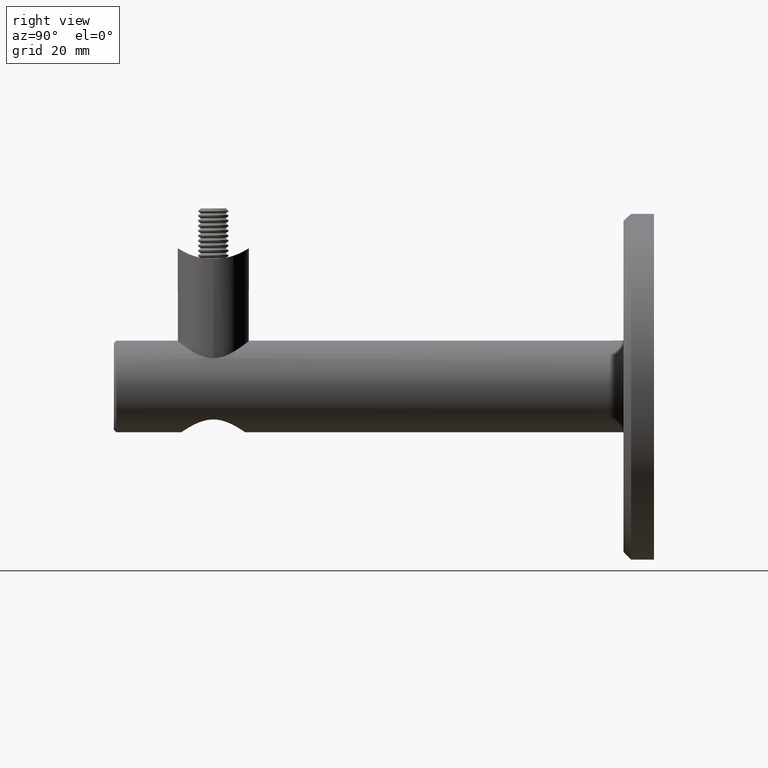
[diagram: clean part render]
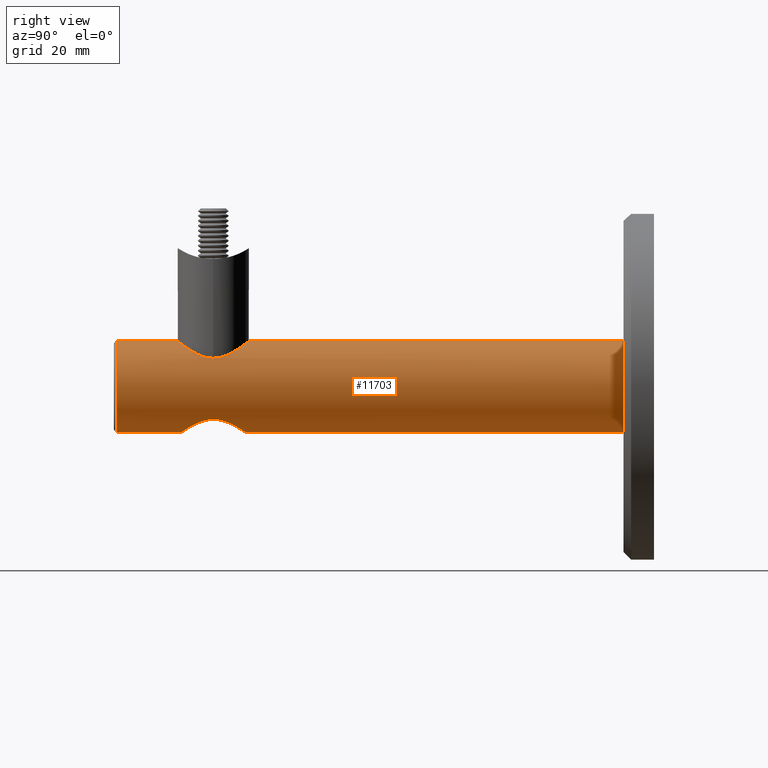
[diagram: same view with one face highlighted and labeled with its STEP entity id]
A machine part, right view. The second image highlights one B-rep face of the part: STEP entity #11703.
In plain terms, the highlighted cylindrical surface (bore or boss wall) has radius 9 mm, axis along (-0, -1, -0).
Its self-contained STEP definition (entity closure, byte-faithful):
#31 = CARTESIAN_POINT ( 'NONE',  ( 4.710791686269408800, -26.37371973439599800, -7.675304407319747400 ) ) ;
#166 = CARTESIAN_POINT ( 'NONE',  ( 0.0000000000000000000, -49.49999999999999300, 0.0000000000000000000 ) ) ;
#230 = CARTESIAN_POINT ( 'NONE',  ( 4.970846357274778500, -34.30892757832237500, -7.507506707202775700 ) ) ;
#286 = CARTESIAN_POINT ( 'NONE',  ( -2.061286546811104300, -36.41479551234504400, -8.769703303344153200 ) ) ;
#289 = CARTESIAN_POINT ( 'NONE',  ( 2.619542184995936800, -23.89670945021535400, 8.613346532681605400 ) ) ;
#345 = CARTESIAN_POINT ( 'NONE',  ( -5.596902373827534300, -27.68938242109472700, -7.050995136853140700 ) ) ;
#347 = CARTESIAN_POINT ( 'NONE',  ( -5.642332087172477800, -26.16755877182649900, 7.019329449387522700 ) ) ;
#404 = CARTESIAN_POINT ( 'NONE',  ( -4.155172318841324300, -25.81462797999166300, -7.989785200455963300 ) ) ;
#407 = CARTESIAN_POINT ( 'NONE',  ( -3.024464550961373500, -24.07207068461833500, 8.479659982971508500 ) ) ;
#478 = CARTESIAN_POINT ( 'NONE',  ( -5.292625008608878200, -33.83014449353832000, -7.280554259646638800 ) ) ;
#479 = CARTESIAN_POINT ( 'NONE',  ( 0.5027749281979183600, -23.40095533306699900, 8.999246348882701700 ) ) ;
#540 = CARTESIAN_POINT ( 'NONE',  ( -0.8508197996051981600, -24.29398310942404400, -8.969300782765149200 ) ) ;
#542 = CARTESIAN_POINT ( 'NONE',  ( 6.357556442758746800, -27.30689534025241000, 6.375548285552003600 ) ) ;
#608 = CARTESIAN_POINT ( 'NONE',  ( -6.021984603733025100, -34.26749708945724400, 6.690436094339672100 ) ) ;
#677 = CARTESIAN_POINT ( 'NONE',  ( 0.0000000000000000000, 50.00000000000000000, 0.0000000000000000000 ) ) ;
#741 = CARTESIAN_POINT ( 'NONE',  ( 3.638758388492744800, -36.60108031841120600, 8.234538053706854700 ) ) ;
#802 = CARTESIAN_POINT ( 'NONE',  ( 5.365885739123341700, -35.17061067538768500, 7.235292245401721400 ) ) ;
#861 = CARTESIAN_POINT ( 'NONE',  ( -2.633039232334198700, -37.09789016638863800, 8.609206545323306900 ) ) ;
#1064 = EDGE_CURVE ( 'NONE', #4571, #4571, #7368, .T. ) ;
#1347 = VERTEX_POINT ( 'NONE', #8978 ) ;
#1352 = CARTESIAN_POINT ( 'NONE',  ( 7.099999999999998800, -30.50000000000000000, 5.530822723609934300 ) ) ;
#1422 = CARTESIAN_POINT ( 'NONE',  ( 0.8486939787490258600, -24.29371766589811400, -8.969485670367008700 ) ) ;
#1667 = CARTESIAN_POINT ( 'NONE',  ( -5.396836218958042300, -33.65860674950023000, -7.203382794264179300 ) ) ;
#1728 = CARTESIAN_POINT ( 'NONE',  ( -6.025830904942493400, -32.17157201560063800, -6.685513959992365000 ) ) ;
#1733 = CARTESIAN_POINT ( 'NONE',  ( 1.939970811941640600, -23.66599755546607400, 8.791556000784218800 ) ) ;
#1795 = CARTESIAN_POINT ( 'NONE',  ( -6.163780700509029500, -29.44447943426451900, -6.558286688497323000 ) ) ;
#1797 = CARTESIAN_POINT ( 'NONE',  ( -3.834725836337208100, -24.52034322467752500, 8.144845665829075500 ) ) ;
#1824 = EDGE_LOOP ( 'NONE', ( #13022 ) ) ;
#1859 = CARTESIAN_POINT ( 'NONE',  ( 6.039469416618631600, -32.16286533889366700, -6.673683168320340400 ) ) ;
#1861 = CARTESIAN_POINT ( 'NONE',  ( 7.099999999999999600, -30.00273319755235900, 5.530822723609935200 ) ) ;
#1874 = EDGE_CURVE ( 'NONE', #10349, #10349, #3336, .T. ) ;
#1919 = CARTESIAN_POINT ( 'NONE',  ( -6.238972838082677400, -30.07286291933747100, -6.486609913351317800 ) ) ;
#1921 = CARTESIAN_POINT ( 'NONE',  ( -6.698460215747077800, -28.13469507914095000, 6.011819268739251300 ) ) ;
#2117 = CARTESIAN_POINT ( 'NONE',  ( -7.086409559180720100, -29.99799698838017600, 5.548377279018345700 ) ) ;
#2183 = CARTESIAN_POINT ( 'NONE',  ( -5.655039729623048600, -34.81553672247727600, 7.008955732243393300 ) ) ;
#2238 = EDGE_LOOP ( 'NONE', ( #10356 ) ) ;
#2246 = CARTESIAN_POINT ( 'NONE',  ( 6.901556102760979500, -32.18400665644620100, 5.777062135213372000 ) ) ;
#2316 = CARTESIAN_POINT ( 'NONE',  ( 6.700702125161100800, -32.85897151208032300, 6.009317344825627000 ) ) ;
#2888 = CARTESIAN_POINT ( 'NONE',  ( 6.161857813342693100, -29.43352522790626600, -6.560094511543604200 ) ) ;
#3135 = CARTESIAN_POINT ( 'NONE',  ( 2.656853951682345300, -36.16095396528888300, -8.601172577071768200 ) ) ;
#3205 = CARTESIAN_POINT ( 'NONE',  ( 5.916685559009553500, -32.55439536689002700, -6.784915671986841100 ) ) ;
#3258 = CARTESIAN_POINT ( 'NONE',  ( -6.026502375267695800, -28.83075492519453700, -6.684911694872583100 ) ) ;
#3260 = CARTESIAN_POINT ( 'NONE',  ( -6.013169986242904700, -26.71836327618240900, 6.698396154438110100 ) ) ;
#3319 = CARTESIAN_POINT ( 'NONE',  ( -3.347443741442171400, -35.78178920804881400, -8.356257711368673600 ) ) ;
#3324 = CARTESIAN_POINT ( 'NONE',  ( -0.4745413456879579700, -23.41167377363979800, 8.990780701699421200 ) ) ;
#3336 = B_SPLINE_CURVE_WITH_KNOTS ( 'NONE', 3,
 ( #8663, #8924, #1422, #4548, #11893, #6048, #7222, #4365, #18948, #31, #11706, #18884, #14546, #5778, #13220, #16004, #17453, #2888, #10294, #7767, #17714, #7700, #15110, #1859, #3205, #12082, #14918, #9242, #12144, #230, #13538, #7587, #6181, #12211, #4730, #16306, #3135, #13471, #17774, #9049, #3387, #4669, #17897, #16362, #6116, #10489, #16253, #286, #4610, #10559, #10742, #3319, #7640, #10618, #13412, #14980, #478, #1667, #13596, #7522, #17954, #17840, #1728, #13656, #6239, #9181, #11961, #1919, #4866, #1795, #14857, #3258, #12018, #9114, #345, #8988, #4801, #16425, #404, #10680, #15044, #6299, #16489, #10811, #540, #4928, #15174 ),
 .UNSPECIFIED., .T., .F.,
 ( 4, 2, 2, 2, 2, 2, 2, 2, 2, 2, 2, 2, 2, 2, 2, 2, 2, 2, 2, 2, 2, 1, 2, 2, 2, 2, 2, 2, 2, 2, 2, 2, 2, 2, 2, 2, 2, 2, 2, 2, 2, 2, 2, 4 ),
 ( 0.0000000000000000000, 0.001266873323957467800, 0.002533746647914935600, 0.003800619971872404500, 0.005067493295829873800, 0.006334366619787342200, 0.007601239943744811600, 0.008234676605723547500, 0.008868113267702282600, 0.009501549929681016000, 0.01013498659165975300, 0.01140185991561723200, 0.01266873323957471000, 0.01330216990155345900, 0.01393560656353220500, 0.01520247988748971500, 0.01646935321144722700, 0.01710278987342598100, 0.01773622653540473900, 0.01900309985936225000, 0.01963653652134100500, 0.02026997318331976200, 0.02090340984529851600, 0.02153684650727726700, 0.02280371983123477900, 0.02343715649321353700, 0.02407059315519229100, 0.02533746647914980300, 0.02660433980310731800, 0.02723777646508607600, 0.02787121312706483000, 0.02850464978904358400, 0.02913808645102234200, 0.03040495977497985300, 0.03103839643695861800, 0.03167183309893737600, 0.03230526976091614000, 0.03293870642289489800, 0.03420557974685242000, 0.03547245307080995600, 0.03673932639476748500, 0.03800619971872501400, 0.03927307304268255100, 0.04053994636664008000 ),
 .UNSPECIFIED. ) ;
#3387 = CARTESIAN_POINT ( 'NONE',  ( 0.8609192757624110100, -36.69408146560996900, -8.961243814172142700 ) ) ;
#3458 = CARTESIAN_POINT ( 'NONE',  ( -7.087608877983556400, -30.98456550589392600, 5.546837581489983300 ) ) ;
#3505 = FACE_BOUND ( 'NONE', #2238, .T. ) ;
#3523 = CARTESIAN_POINT ( 'NONE',  ( 7.048241046302172700, -31.48067241588162100, 5.598749178871564400 ) ) ;
#3585 = CARTESIAN_POINT ( 'NONE',  ( -3.674839901313075700, -36.59160671086252100, 8.225973353043549700 ) ) ;
#3586 = ORIENTED_EDGE ( 'NONE', *, *, #11370, .T. ) ;
#3659 = CARTESIAN_POINT ( 'NONE',  ( 4.394940813142290500, -36.09470929681899800, 7.865085031066310100 ) ) ;
#4365 = CARTESIAN_POINT ( 'NONE',  ( 3.851609665870817900, -25.56135652896672300, -8.142248435011916600 ) ) ;
#4548 = CARTESIAN_POINT ( 'NONE',  ( 1.669883731430251500, -24.46264046095857500, -8.853442436927489100 ) ) ;
#4571 = VERTEX_POINT ( 'NONE', #1352 ) ;
#4610 = CARTESIAN_POINT ( 'NONE',  ( -2.632602788358706600, -36.17227508183062000, -8.608632418852220500 ) ) ;
#4669 = CARTESIAN_POINT ( 'NONE',  ( 0.4374186519230720500, -36.73830793428267300, -8.991870443543108500 ) ) ;
#4673 = CARTESIAN_POINT ( 'NONE',  ( 0.9996813140856827300, -23.45416543697787400, 8.957114256207150400 ) ) ;
#4730 = CARTESIAN_POINT ( 'NONE',  ( 3.196810840353014000, -35.87437651496257700, -8.415214608250977300 ) ) ;
#4732 = CARTESIAN_POINT ( 'NONE',  ( -6.129452660453190500, -26.90975668477160800, 6.591798079899138700 ) ) ;
#4801 = CARTESIAN_POINT ( 'NONE',  ( -4.961065305079624300, -26.67785486156893500, -7.514110131502071100 ) ) ;
#4803 = CARTESIAN_POINT ( 'NONE',  ( -2.374382389413037100, -23.79217228283971500, 8.693122871337243000 ) ) ;
#4866 = CARTESIAN_POINT ( 'NONE',  ( -6.195827167547495400, -29.65208852473228900, -6.527833940305267600 ) ) ;
#4868 = CARTESIAN_POINT ( 'NONE',  ( -6.899736529606778700, -28.80862954874588400, 5.779238138283410800 ) ) ;
#4928 = CARTESIAN_POINT ( 'NONE',  ( -0.4291821715899117900, -24.24999999999998900, -8.999999999999998200 ) ) ;
#4934 = CARTESIAN_POINT ( 'NONE',  ( 3.020923846718889500, -36.92959768846495900, 8.480925193562120200 ) ) ;
#4998 = CARTESIAN_POINT ( 'NONE',  ( -7.037919363886358900, -31.46782971860086800, 5.609750243115502000 ) ) ;
#5123 = CIRCLE ( 'NONE', #12215, 9.000000000000000000 ) ;
#5185 = CARTESIAN_POINT ( 'NONE',  ( 6.621029951178346800, -33.07358739075107900, 6.097428742028487400 ) ) ;
#5778 = CARTESIAN_POINT ( 'NONE',  ( 5.829928713962620400, -28.23834549006394900, -6.857292756682857900 ) ) ;
#6048 = CARTESIAN_POINT ( 'NONE',  ( 2.828731775729805200, -24.91171278577062500, -8.552893307550022000 ) ) ;
#6116 = CARTESIAN_POINT ( 'NONE',  ( -0.8308305324646294600, -36.69816615199268700, -8.964069016239360400 ) ) ;
#6181 = CARTESIAN_POINT ( 'NONE',  ( 3.859914668503687800, -35.43173241411611200, -8.138091319126463200 ) ) ;
#6239 = CARTESIAN_POINT ( 'NONE',  ( -6.206081362628863100, -31.35071204120896100, -6.519046236927956700 ) ) ;
#6242 = CARTESIAN_POINT ( 'NONE',  ( -1.920221877508128800, -23.64720020921702200, 8.806080602315232000 ) ) ;
#6299 = CARTESIAN_POINT ( 'NONE',  ( -2.832163309086264600, -24.91348036958945800, -8.551737242421094000 ) ) ;
#6302 = CARTESIAN_POINT ( 'NONE',  ( -3.235958163936564400, -24.17607580123556600, 8.400980630015830300 ) ) ;
#6303 = AXIS2_PLACEMENT_3D ( 'NONE', #17633, #16233, #11875 ) ;
#6365 = CARTESIAN_POINT ( 'NONE',  ( 5.650816841386585100, -26.17881422254010500, 7.012413534004660500 ) ) ;
#6441 = CARTESIAN_POINT ( 'NONE',  ( -4.913941669775034000, -35.62954746217947400, 7.542441221280653500 ) ) ;
#6503 = CARTESIAN_POINT ( 'NONE',  ( -4.406906396592605200, -36.07129350334241000, 7.849757416039736300 ) ) ;
#6639 = CARTESIAN_POINT ( 'NONE',  ( 5.643989429408271100, -34.83030218848446700, 7.017997618148541500 ) ) ;
#6706 = CARTESIAN_POINT ( 'NONE',  ( -5.379304377135541800, -35.15504071098668200, 7.225237273600829900 ) ) ;
#7222 = CARTESIAN_POINT ( 'NONE',  ( 3.185065035025314500, -25.10737011516011200, -8.425346717989876700 ) ) ;
#7368 = B_SPLINE_CURVE_WITH_KNOTS ( 'NONE', 3,
 ( #10681, #1861, #13414, #16308, #7589, #18028, #17777, #542, #13473, #6365, #16427, #9051, #17898, #12276, #9183, #289, #10561, #1733, #13541, #4673, #479, #12214, #3324, #16366, #7643, #6242, #4803, #407, #6302, #17842, #1797, #16491, #12086, #9116, #347, #3260, #4732, #14982, #9245, #10744, #1921, #13660, #4868, #15113, #15369, #2117, #12341, #16624, #3458, #4998, #10878, #15242, #8151, #18295, #13856, #16756, #608, #2183, #6706, #6441, #8089, #6503, #16811, #3585, #16693, #861, #12470, #13916, #7898, #13981, #18352, #8031, #18097, #9519, #9386, #7963, #13792, #4934, #9576, #741, #15177, #3659, #15299, #802, #6639, #11062, #18162, #5185, #2316, #11121, #2246, #3523, #9453, #12534 ),
 .UNSPECIFIED., .T., .F.,
 ( 4, 2, 2, 2, 2, 2, 2, 2, 2, 2, 2, 2, 2, 2, 2, 2, 2, 2, 2, 2, 2, 2, 2, 2, 2, 2, 2, 2, 2, 2, 2, 2, 2, 2, 2, 2, 2, 2, 2, 2, 2, 2, 2, 2, 2, 2, 4 ),
 ( 0.0000000000000000000, 0.001467750234835165500, 0.002201625352252747800, 0.002935500469670330600, 0.004403250704505486100, 0.005871000939340641200, 0.007338751174175797200, 0.008806501409010954900, 0.009540376526428532400, 0.01027425164384611000, 0.01174200187868126700, 0.01247587699609884400, 0.01320975211351642200, 0.01467750234835157500, 0.01541137746576915300, 0.01614525258318673000, 0.01761300281802189900, 0.01908075305285706500, 0.01981462817027464600, 0.02054850328769222700, 0.02128237840510981100, 0.02201625352252739200, 0.02275012863994497700, 0.02348400375736256100, 0.02421787887478014200, 0.02495175399219772700, 0.02641950422703287200, 0.02715337934445044600, 0.02788725446186801600, 0.02935500469670315100, 0.03008887981412072800, 0.03082275493153830600, 0.03229050516637346100, 0.03302438028379103800, 0.03375825540120861600, 0.03449213051862619300, 0.03522600563604377800, 0.03669375587087893300, 0.03816150610571408800, 0.03889538122313166600, 0.03962925634054924300, 0.04109700657538438400, 0.04256475681021953900, 0.04403250704505468800, 0.04476638216247225800, 0.04550025727988983600, 0.04696800751472498400 ),
 .UNSPECIFIED. ) ;
#7522 = CARTESIAN_POINT ( 'NONE',  ( -5.675205204108435100, -33.12586957590136900, -6.985880431573730400 ) ) ;
#7587 = CARTESIAN_POINT ( 'NONE',  ( 4.163431352355273100, -35.17830210777832900, -7.985567357936711900 ) ) ;
#7589 = CARTESIAN_POINT ( 'NONE',  ( 6.841409993893956100, -28.58719272322179000, 5.848614690234080100 ) ) ;
#7640 = CARTESIAN_POINT ( 'NONE',  ( -3.844774781265439100, -35.44377530262751500, -8.145391153594802700 ) ) ;
#7643 = CARTESIAN_POINT ( 'NONE',  ( -1.203527697863440200, -23.49849656585602300, 8.922449102618022800 ) ) ;
#7700 = CARTESIAN_POINT ( 'NONE',  ( 6.250593836719706300, -30.91564341634560300, -6.475343804298815600 ) ) ;
#7767 = CARTESIAN_POINT ( 'NONE',  ( 6.238370608101020000, -30.06366540867492500, -6.487191958830198500 ) ) ;
#7898 = CARTESIAN_POINT ( 'NONE',  ( -1.719558539406726500, -37.39286189663235400, 8.837451859090279500 ) ) ;
#7963 = CARTESIAN_POINT ( 'NONE',  ( 1.915285011990855300, -37.35432032788039400, 8.807264337257729300 ) ) ;
#8031 = CARTESIAN_POINT ( 'NONE',  ( -0.5162840605488400200, -37.58548975363247300, 8.988542682296978700 ) ) ;
#8089 = CARTESIAN_POINT ( 'NONE',  ( -4.749198317896485800, -35.78254206097818700, 7.647524489420671800 ) ) ;
#8151 = CARTESIAN_POINT ( 'NONE',  ( -6.714006008970097900, -32.85334946744718800, 5.999049427936779600 ) ) ;
#8366 = ORIENTED_EDGE ( 'NONE', *, *, #1064, .F. ) ;
#8551 = CYLINDRICAL_SURFACE ( 'NONE', #6303, 9.000000000000000000 ) ;
#8663 = CARTESIAN_POINT ( 'NONE',  ( 2.439454888092385000E-016, -24.24999999999999300, -8.999999999999998200 ) ) ;
#8924 = CARTESIAN_POINT ( 'NONE',  ( 0.4291821715898909200, -24.25000000000000000, -9.000000000000000000 ) ) ;
#8928 = DIRECTION ( 'NONE',  ( 0.0000000000000000000, 0.0000000000000000000, 1.000000000000000000 ) ) ;
#8978 = CARTESIAN_POINT ( 'NONE',  ( 0.0000000000000000000, 50.00000000000000000, -9.000000000000000000 ) ) ;
#8988 = CARTESIAN_POINT ( 'NONE',  ( -5.405888488771334500, -27.33814420514367800, -7.200721469170742800 ) ) ;
#9049 = CARTESIAN_POINT ( 'NONE',  ( 1.072864009170542800, -36.66082917023315000, -8.938251202745627600 ) ) ;
#9051 = CARTESIAN_POINT ( 'NONE',  ( 4.757298592001784100, -25.21110720532316700, 7.649033008531914900 ) ) ;
#9114 = CARTESIAN_POINT ( 'NONE',  ( -5.832845886159674400, -28.24589137183630100, -6.854806417312664400 ) ) ;
#9116 = CARTESIAN_POINT ( 'NONE',  ( -5.364477866456413200, -25.82788069233103200, 7.236287173029227300 ) ) ;
#9181 = CARTESIAN_POINT ( 'NONE',  ( -6.249874785397898000, -30.93087297002974300, -6.476037769886930000 ) ) ;
#9183 = CARTESIAN_POINT ( 'NONE',  ( 3.267183360922599100, -24.17882113356184700, 8.398361262189007800 ) ) ;
#9186 = DIRECTION ( 'NONE',  ( 0.0000000000000000000, 1.000000000000000000, 0.0000000000000000000 ) ) ;
#9242 = CARTESIAN_POINT ( 'NONE',  ( 5.401911834586195800, -33.64986395848306000, -7.199564145427476800 ) ) ;
#9245 = CARTESIAN_POINT ( 'NONE',  ( -6.441149498142706000, -27.50454689077534500, 6.287148760069491100 ) ) ;
#9386 = CARTESIAN_POINT ( 'NONE',  ( 0.9556759127346395900, -37.55242563832965200, 8.962304688711904900 ) ) ;
#9453 = CARTESIAN_POINT ( 'NONE',  ( 7.099999999999997000, -30.99726680244763000, 5.530822723609933400 ) ) ;
#9519 = CARTESIAN_POINT ( 'NONE',  ( 0.4679969746572239000, -37.60153195924547000, 9.001208543268454300 ) ) ;
#9576 = CARTESIAN_POINT ( 'NONE',  ( 3.233011371177822600, -36.82545501409710200, 8.402131696278480900 ) ) ;
#9961 = FACE_OUTER_BOUND ( 'NONE', #1824, .T. ) ;
#10246 = EDGE_CURVE ( 'NONE', #1347, #1347, #15208, .T. ) ;
#10294 = CARTESIAN_POINT ( 'NONE',  ( 6.194327999366373100, -29.64095613856373000, -6.529259375380623200 ) ) ;
#10349 = VERTEX_POINT ( 'NONE', #12966 ) ;
#10356 = ORIENTED_EDGE ( 'NONE', *, *, #1874, .F. ) ;
#10489 = CARTESIAN_POINT ( 'NONE',  ( -1.043174404174800600, -36.66595272314544500, -8.941785554027045900 ) ) ;
#10559 = CARTESIAN_POINT ( 'NONE',  ( -2.818649620923575400, -36.08203086548486700, -8.549329266143358200 ) ) ;
#10561 = CARTESIAN_POINT ( 'NONE',  ( 2.394974005130376500, -23.81186306376499600, 8.678654456818767600 ) ) ;
#10618 = CARTESIAN_POINT ( 'NONE',  ( -4.154214223959382200, -35.18626211319006800, -7.990300176283521500 ) ) ;
#10680 = CARTESIAN_POINT ( 'NONE',  ( -3.845218378595307100, -25.55667179761599800, -8.145129779940679900 ) ) ;
#10681 = CARTESIAN_POINT ( 'NONE',  ( 7.099999999999998800, -30.50000000000000000, 5.530822723609934300 ) ) ;
#10742 = CARTESIAN_POINT ( 'NONE',  ( -3.175551036403187100, -35.88699636940265200, -8.423282744967469400 ) ) ;
#10744 = CARTESIAN_POINT ( 'NONE',  ( -6.618726326987764500, -27.92054114290871100, 6.099926900964177000 ) ) ;
#10811 = CARTESIAN_POINT ( 'NONE',  ( -1.672684387828840000, -24.46338945133711800, -8.852930464079417300 ) ) ;
#10878 = CARTESIAN_POINT ( 'NONE',  ( -7.000572605664142900, -31.70819364407045200, 5.656668690607612700 ) ) ;
#10997 = DIRECTION ( 'NONE',  ( -0.0000000000000000000, -1.000000000000000000, -0.0000000000000000000 ) ) ;
#11062 = CARTESIAN_POINT ( 'NONE',  ( 6.138361200867582700, -34.09536583542609400, 6.589949090493371700 ) ) ;
#11121 = CARTESIAN_POINT ( 'NONE',  ( 6.840792350748881900, -32.41512808419712100, 5.849347308452134800 ) ) ;
#11370 = EDGE_CURVE ( 'NONE', #12839, #12839, #5123, .T. ) ;
#11422 = EDGE_LOOP ( 'NONE', ( #8366 ) ) ;
#11703 = ADVANCED_FACE ( 'NONE', ( #14285, #18825, #9961, #3505 ), #8551, .T. ) ;
#11706 = CARTESIAN_POINT ( 'NONE',  ( 4.963844912813939000, -26.68190601218607200, -7.512168424558284500 ) ) ;
#11875 = DIRECTION ( 'NONE',  ( 0.0000000000000000000, 0.0000000000000000000, -1.000000000000000000 ) ) ;
#11893 = CARTESIAN_POINT ( 'NONE',  ( 2.074270510106515100, -24.59000175138390500, -8.766476443831917800 ) ) ;
#11961 = CARTESIAN_POINT ( 'NONE',  ( -6.250062209753355800, -30.28729371994074200, -6.475856883976945300 ) ) ;
#12018 = CARTESIAN_POINT ( 'NONE',  ( -5.903227241398573400, -28.43674574148525700, -6.794018206022204100 ) ) ;
#12082 = CARTESIAN_POINT ( 'NONE',  ( 5.679745965299316500, -33.11615898820942000, -6.982195066002333300 ) ) ;
#12086 = CARTESIAN_POINT ( 'NONE',  ( -4.741982599002433600, -25.19717786121841700, 7.658660187069680000 ) ) ;
#12144 = CARTESIAN_POINT ( 'NONE',  ( 5.299606209599296000, -33.81893954815552700, -7.275449583342480200 ) ) ;
#12211 = CARTESIAN_POINT ( 'NONE',  ( 3.367318922657844800, -35.76908623351847200, -8.348235212591538000 ) ) ;
#12214 = CARTESIAN_POINT ( 'NONE',  ( -0.2308721795487392300, -23.39954209296371700, 9.000361237516310500 ) ) ;
#12215 = AXIS2_PLACEMENT_3D ( 'NONE', #166, #9186, #8928 ) ;
#12276 = CARTESIAN_POINT ( 'NONE',  ( 3.666806138598193200, -24.40331431348221600, 8.229714032843551400 ) ) ;
#12341 = CARTESIAN_POINT ( 'NONE',  ( -7.099774662057871700, -30.24677196153735500, 5.531111992993455600 ) ) ;
#12470 = CARTESIAN_POINT ( 'NONE',  ( -2.408191806418730900, -37.18342059414426600, 8.675017932564244900 ) ) ;
#12534 = CARTESIAN_POINT ( 'NONE',  ( 7.099999999999998800, -30.50000000000000000, 5.530822723609934300 ) ) ;
#12839 = VERTEX_POINT ( 'NONE', #15163 ) ;
#12966 = CARTESIAN_POINT ( 'NONE',  ( 0.0000000000000000000, -24.25000000000000000, -9.000000000000000000 ) ) ;
#13022 = ORIENTED_EDGE ( 'NONE', *, *, #10246, .T. ) ;
#13220 = CARTESIAN_POINT ( 'NONE',  ( 5.901313748713042700, -28.43126572513195400, -6.795683662700605000 ) ) ;
#13412 = CARTESIAN_POINT ( 'NONE',  ( -4.711186343919303400, -34.62592676194514500, -7.675097130234320300 ) ) ;
#13414 = CARTESIAN_POINT ( 'NONE',  ( 7.048487743063182300, -29.52091164592932400, 5.598438797225091100 ) ) ;
#13471 = CARTESIAN_POINT ( 'NONE',  ( 2.086779065072647200, -36.40583982210276300, -8.763647848820729900 ) ) ;
#13473 = CARTESIAN_POINT ( 'NONE',  ( 6.142002504263147400, -26.91110285242873000, 6.586461856293955600 ) ) ;
#13538 = CARTESIAN_POINT ( 'NONE',  ( 4.722839841311394300, -34.61284026807992100, -7.668000423007350200 ) ) ;
#13541 = CARTESIAN_POINT ( 'NONE',  ( 1.708223600559325200, -23.60433041791484100, 8.839642909225034400 ) ) ;
#13596 = CARTESIAN_POINT ( 'NONE',  ( -5.588047621943339900, -33.30648562211514000, -7.056081676812697300 ) ) ;
#13656 = CARTESIAN_POINT ( 'NONE',  ( -6.078743337228194900, -31.96817698328935400, -6.637185538298388600 ) ) ;
#13660 = CARTESIAN_POINT ( 'NONE',  ( -6.838831715412060100, -28.57791326968305200, 5.851642585651054800 ) ) ;
#13792 = CARTESIAN_POINT ( 'NONE',  ( 2.370413799559896600, -37.20924494347980300, 8.694218223896976700 ) ) ;
#13856 = CARTESIAN_POINT ( 'NONE',  ( -6.349556861469929800, -33.68483602069762400, 6.380047921849294000 ) ) ;
#13916 = CARTESIAN_POINT ( 'NONE',  ( -1.951779681855262000, -37.33067014927750200, 8.788963532767136000 ) ) ;
#13981 = CARTESIAN_POINT ( 'NONE',  ( -1.246791991206064100, -37.49384990024501000, 8.916442489179704700 ) ) ;
#14285 = FACE_OUTER_BOUND ( 'NONE', #15547, .T. ) ;
#14546 = CARTESIAN_POINT ( 'NONE',  ( 5.593098995369545400, -27.68178365685037800, -7.054032511334224200 ) ) ;
#14857 = CARTESIAN_POINT ( 'NONE',  ( -6.079345283507188400, -29.03443624752895100, -6.636631505243279600 ) ) ;
#14918 = CARTESIAN_POINT ( 'NONE',  ( 5.591784746782248100, -33.29897084144268100, -7.053107024455299800 ) ) ;
#14980 = CARTESIAN_POINT ( 'NONE',  ( -4.960358436313603300, -34.32286692178470800, -7.514535476058132000 ) ) ;
#14982 = CARTESIAN_POINT ( 'NONE',  ( -6.343297452358302600, -27.30271765241423100, 6.386279767893301900 ) ) ;
#15044 = CARTESIAN_POINT ( 'NONE',  ( -3.184330911389558100, -25.10720529388135700, -8.425489906108282400 ) ) ;
#15110 = CARTESIAN_POINT ( 'NONE',  ( 6.208100407805378800, -31.33654126985609200, -6.517110340634161500 ) ) ;
#15113 = CARTESIAN_POINT ( 'NONE',  ( -6.997842062654331000, -29.27635599641420300, 5.660049832212207500 ) ) ;
#15163 = CARTESIAN_POINT ( 'NONE',  ( 0.0000000000000000000, -49.49999999999999300, 9.000000000000000000 ) ) ;
#15174 = CARTESIAN_POINT ( 'NONE',  ( 2.439454888092385000E-016, -24.24999999999999300, -8.999999999999998200 ) ) ;
#15176 = DIRECTION ( 'NONE',  ( 0.0000000000000000000, 0.0000000000000000000, -1.000000000000000000 ) ) ;
#15177 = CARTESIAN_POINT ( 'NONE',  ( 3.833433788827069800, -36.48049785581545700, 8.145462062456051200 ) ) ;
#15208 = CIRCLE ( 'NONE', #15590, 9.000000000000000000 ) ;
#15242 = CARTESIAN_POINT ( 'NONE',  ( -6.854002283703863400, -32.41406568590854700, 5.834922675141916300 ) ) ;
#15299 = CARTESIAN_POINT ( 'NONE',  ( 4.741869840364289600, -35.80301841062392800, 7.658776276843521900 ) ) ;
#15369 = CARTESIAN_POINT ( 'NONE',  ( -7.035414682735180700, -29.51402449012285700, 5.612898637311132300 ) ) ;
#15547 = EDGE_LOOP ( 'NONE', ( #3586 ) ) ;
#15590 = AXIS2_PLACEMENT_3D ( 'NONE', #677, #10997, #15176 ) ;
#16004 = CARTESIAN_POINT ( 'NONE',  ( 6.025026533148462700, -28.82541923586217800, -6.686245260166763200 ) ) ;
#16233 = DIRECTION ( 'NONE',  ( -0.0000000000000000000, -1.000000000000000000, -0.0000000000000000000 ) ) ;
#16253 = CARTESIAN_POINT ( 'NONE',  ( -1.664526149010586000, -36.53908900295567000, -8.854621371136573800 ) ) ;
#16306 = CARTESIAN_POINT ( 'NONE',  ( 2.842140399273959800, -36.07007723684283500, -8.541526467952548900 ) ) ;
#16308 = CARTESIAN_POINT ( 'NONE',  ( 6.901803653353806700, -28.81698048203557500, 5.776766434446591900 ) ) ;
#16362 = CARTESIAN_POINT ( 'NONE',  ( -0.4084549655010175100, -36.74024899844076200, -8.993218402926482100 ) ) ;
#16366 = CARTESIAN_POINT ( 'NONE',  ( -0.9601346887138770800, -23.46098731641990700, 8.951953334013000000 ) ) ;
#16425 = CARTESIAN_POINT ( 'NONE',  ( -4.711391206062362600, -26.37435327874764100, -7.674953905537717200 ) ) ;
#16427 = CARTESIAN_POINT ( 'NONE',  ( 5.374919379879316700, -25.84011603719103100, 7.228404908337016500 ) ) ;
#16489 = CARTESIAN_POINT ( 'NONE',  ( -2.078654214133627100, -24.59156981522490800, -8.765418160636199800 ) ) ;
#16491 = CARTESIAN_POINT ( 'NONE',  ( -4.395340200347837900, -24.90565874429036300, 7.864827853385806500 ) ) ;
#16624 = CARTESIAN_POINT ( 'NONE',  ( -7.100219570976921800, -30.74043031293672400, 5.530540857362077600 ) ) ;
#16693 = CARTESIAN_POINT ( 'NONE',  ( -3.277814104866960700, -36.81554714026356800, 8.394120945645832800 ) ) ;
#16756 = CARTESIAN_POINT ( 'NONE',  ( -6.136447493163609900, -34.07827681704741700, 6.585278732580675000 ) ) ;
#16811 = CARTESIAN_POINT ( 'NONE',  ( -4.229104836135068300, -36.20746900473457700, 7.947165769083672300 ) ) ;
#17453 = CARTESIAN_POINT ( 'NONE',  ( 6.077208809852530500, -29.02575672536193400, -6.638589066487531600 ) ) ;
#17633 = CARTESIAN_POINT ( 'NONE',  ( 0.0000000000000000000, -50.00000000000000000, 0.0000000000000000000 ) ) ;
#17714 = CARTESIAN_POINT ( 'NONE',  ( 6.249693713581672600, -30.27892495230088700, -6.476212524330488700 ) ) ;
#17774 = CARTESIAN_POINT ( 'NONE',  ( 1.691299409208944400, -36.53153540122966100, -8.849462881476931400 ) ) ;
#17777 = CARTESIAN_POINT ( 'NONE',  ( 6.622826789060924900, -27.93109446556744400, 6.095465551388513400 ) ) ;
#17840 = CARTESIAN_POINT ( 'NONE',  ( -5.902914484190601400, -32.56407162923967700, -6.794286982203924900 ) ) ;
#17842 = CARTESIAN_POINT ( 'NONE',  ( -3.640482646750929700, -24.39997306488149000, 8.233758976515785500 ) ) ;
#17897 = CARTESIAN_POINT ( 'NONE',  ( 0.01420239234501703300, -36.76068862218018300, -9.007432721601544400 ) ) ;
#17898 = CARTESIAN_POINT ( 'NONE',  ( 4.411604937499967100, -24.91853195891277700, 7.855660519387882300 ) ) ;
#17954 = CARTESIAN_POINT ( 'NONE',  ( -5.832636587270399400, -32.75466085680721300, -6.854985773422066900 ) ) ;
#18028 = CARTESIAN_POINT ( 'NONE',  ( 6.702088629669731300, -28.14506255227458800, 6.007761022163384400 ) ) ;
#18097 = CARTESIAN_POINT ( 'NONE',  ( -0.2680352757320288400, -37.59917963042784100, 8.999352820780368100 ) ) ;
#18162 = CARTESIAN_POINT ( 'NONE',  ( 6.354539553461399300, -33.69927894257907000, 6.378599107763243100 ) ) ;
#18295 = CARTESIAN_POINT ( 'NONE',  ( -6.448181287560006000, -33.48035076523989800, 6.279934375818726300 ) ) ;
#18352 = CARTESIAN_POINT ( 'NONE',  ( -1.006248520406604700, -37.53265086544093500, 8.946949910323118300 ) ) ;
#18825 = FACE_BOUND ( 'NONE', #11422, .T. ) ;
#18884 = CARTESIAN_POINT ( 'NONE',  ( 5.403851181796381900, -27.33519504183155000, -7.202140179307612300 ) ) ;
#18948 = CARTESIAN_POINT ( 'NONE',  ( 4.155294875413361000, -25.81478158032077600, -7.989704660049105700 ) ) ;